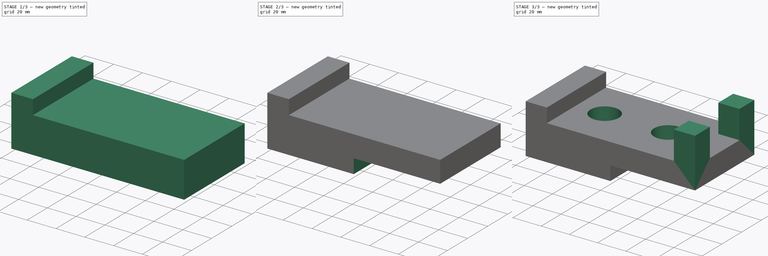
[diagram: build sequence overview — one tinted view per stage of 3, left to right]
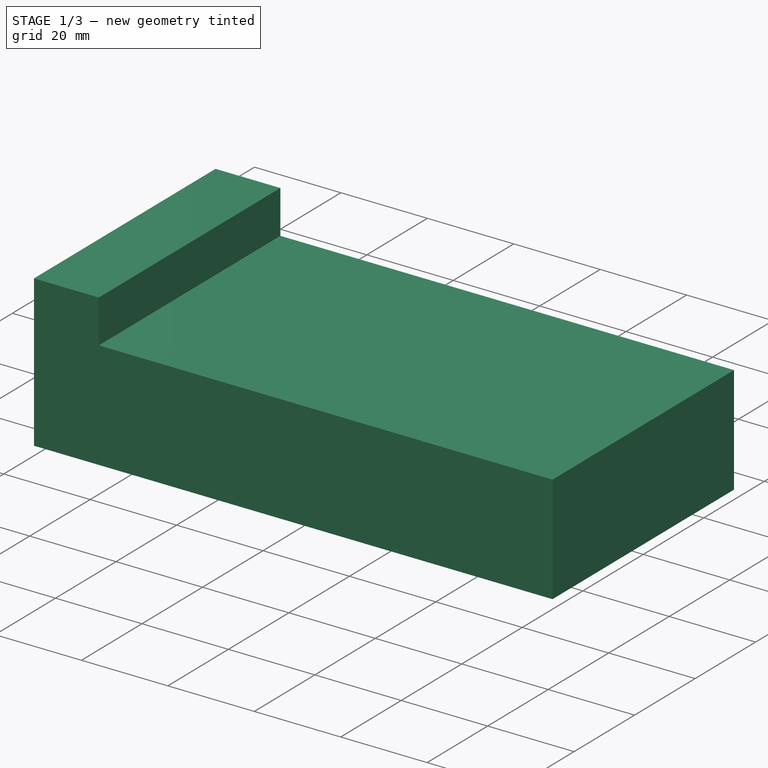
[diagram: stage 1 of 3 — iso view after this stage's code; geometry added in this stage tinted green]
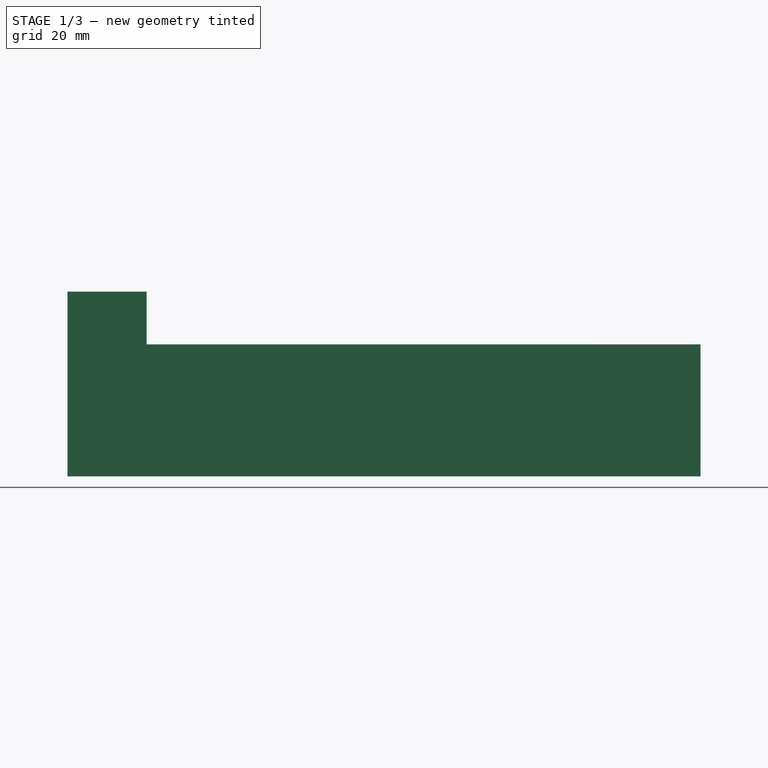
[diagram: stage 1 of 3 — front view after this stage's code; geometry added in this stage tinted green]
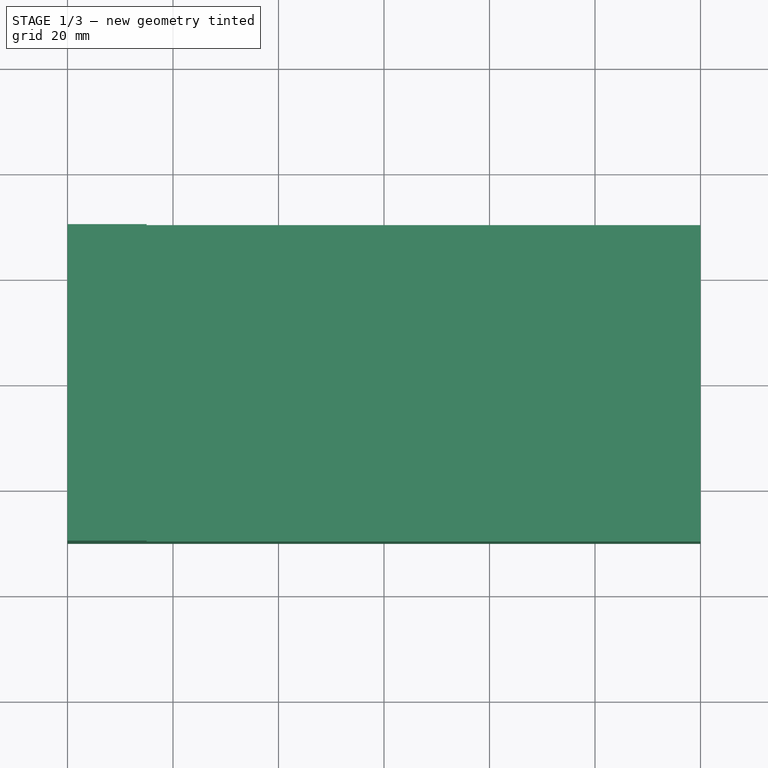
[diagram: stage 1 of 3 — top view after this stage's code; geometry added in this stage tinted green]
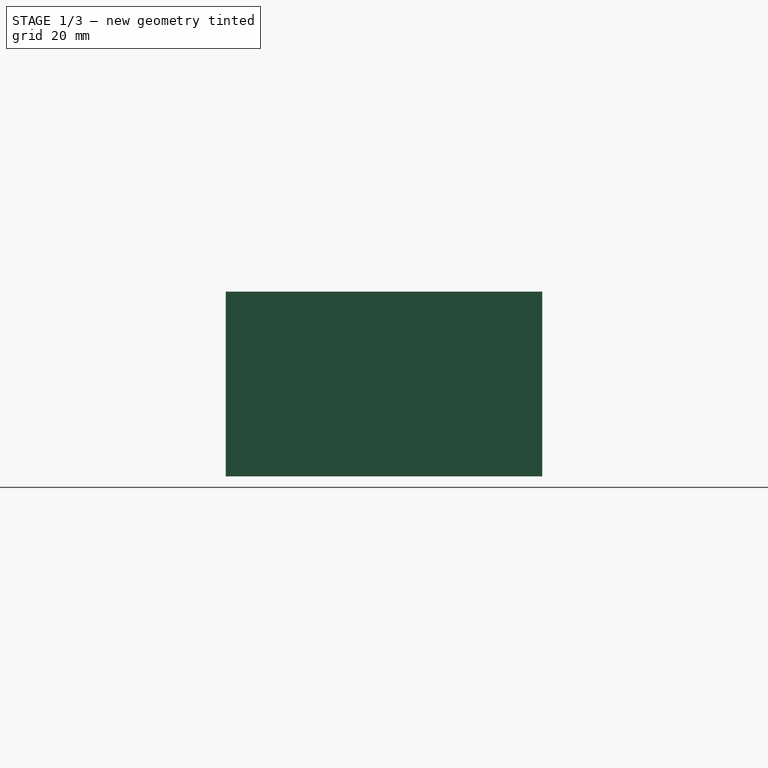
[diagram: stage 1 of 3 — right view after this stage's code; geometry added in this stage tinted green]
FCSTD DOCUMENT  (FreeCAD 0.16R)
Label: Fig 3.17 Final
License: All rights reserved
LicenseURL: http://en.wikipedia.org/wiki/All_rights_reserved
objects: Sketcher::SketchObject×5, PartDesign::Pocket×3, PartDesign::Pad×2
note: 15 computed .brp shape members not serialized (recipe doc carries the construction recipe); baked Part::Feature solids carry a one-line shape summary decoded from their .brp

FEATURE [Sketcher::SketchObject] Sketch
  sketch-geometry (4):
    g0: LineSegment StartX=-60 StartY=30 StartZ=0 EndX=60 EndY=30 EndZ=0
    g1: LineSegment StartX=60 StartY=30 StartZ=0 EndX=60 EndY=-30 EndZ=0
    g2: LineSegment StartX=60 StartY=-30 StartZ=0 EndX=-60 EndY=-30 EndZ=0
    g3: LineSegment StartX=-60 StartY=-30 StartZ=0 EndX=-60 EndY=30 EndZ=0
  constraints (12):
    c: Coincident(g0,g1)
    c: Coincident(g1,g2)
    c: Coincident(g2,g3)
    c: Coincident(g3,g0)
    c: Horizontal(g0)
    c: Horizontal(g2)
    c: Vertical(g1)
    c: Vertical(g3)
    c: Symmetric(g0,g0,g-2)
    c: Symmetric(g2,g0,g-1)
    c: DistanceX(g2,g2) = 120
    c: DistanceY(g3,g3) = 60
FEATURE [PartDesign::Pad] Pad
  Length = 35
  Length2 = 100
  Sketch = -> Sketch
  Type = 0
FEATURE [Sketcher::SketchObject] Sketch001
  ExternalGeometry = -> [Pad]
  Placement = pos=(0,0,35) rot=(0,0,1;0rad)
  Support = -> Pad [Face6]
  sketch-geometry (4):
    g0: LineSegment StartX=-45 StartY=40.48 StartZ=0 EndX=77.74 EndY=40.48 EndZ=0
    g1: LineSegment StartX=77.74 StartY=40.48 StartZ=0 EndX=77.74 EndY=-49.3734 EndZ=0
    g2: LineSegment StartX=77.74 StartY=-49.3734 StartZ=0 EndX=-45 EndY=-49.3734 EndZ=0
    g3: LineSegment StartX=-45 StartY=-49.3734 StartZ=0 EndX=-45 EndY=40.48 EndZ=0
  constraints (9):
    c: Coincident(g0,g1)
    c: Coincident(g1,g2)
    c: Coincident(g2,g3)
    c: Coincident(g3,g0)
    c: Horizontal(g0)
    c: Horizontal(g2)
    c: Vertical(g1)
    c: Vertical(g3)
    c: DistanceX(g-3,g2) = 15
FEATURE [PartDesign::Pocket] Pocket
  Length = 10
  Sketch = -> Sketch001
  Type = 0
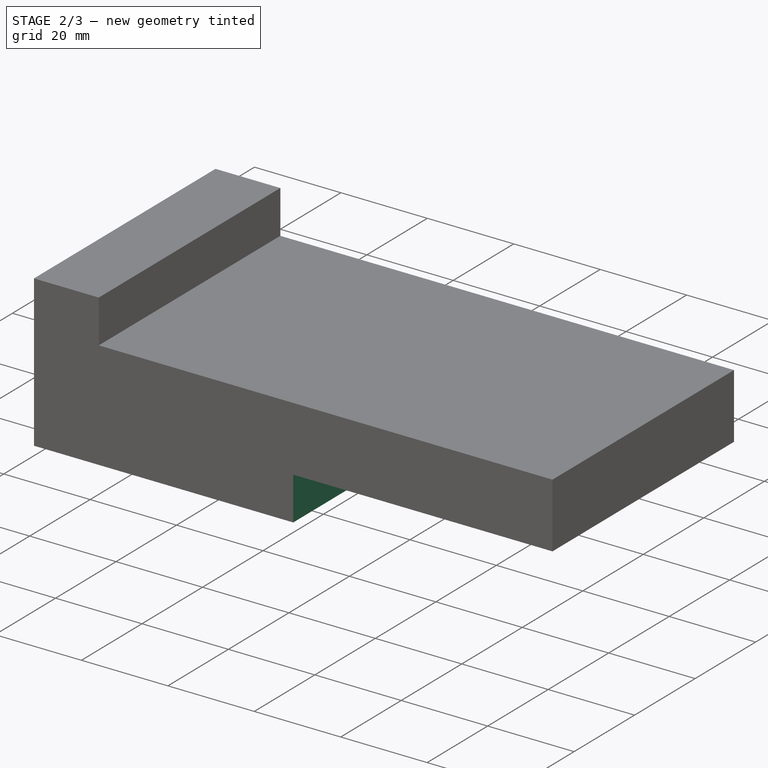
[diagram: stage 2 of 3 — iso view after this stage's code; geometry added in this stage tinted green]
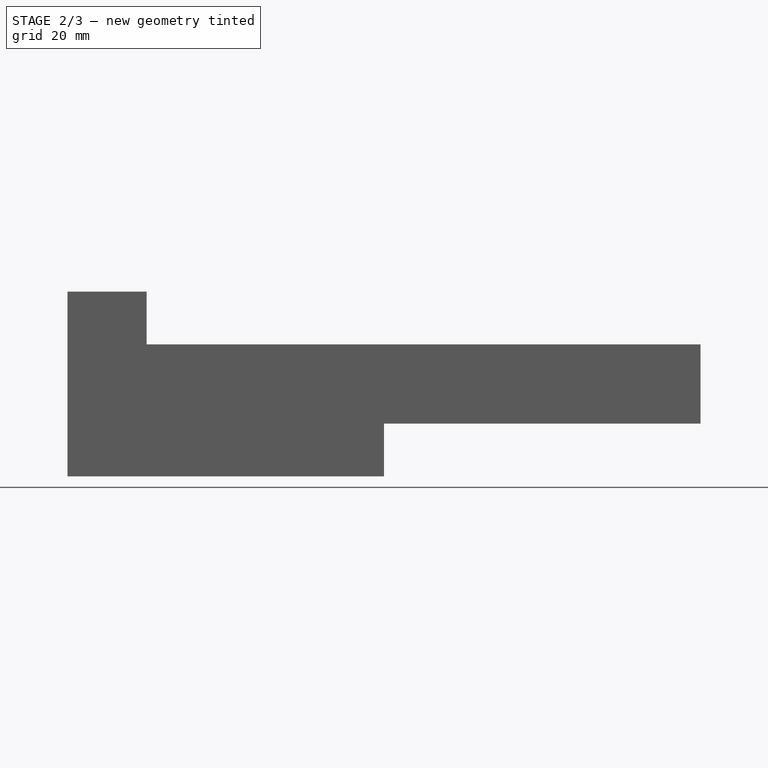
[diagram: stage 2 of 3 — front view after this stage's code; geometry added in this stage tinted green]
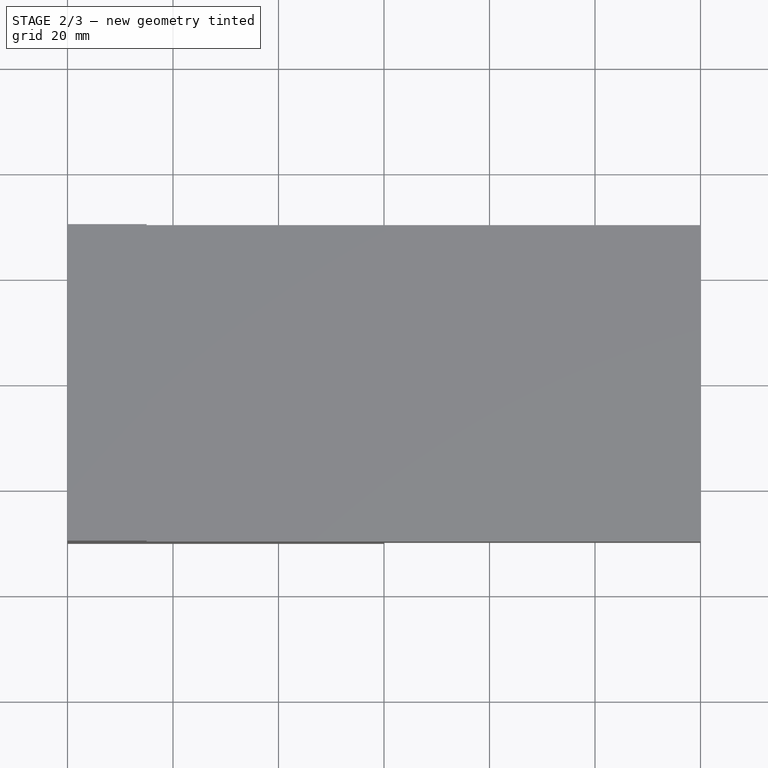
[diagram: stage 2 of 3 — top view after this stage's code; geometry added in this stage tinted green]
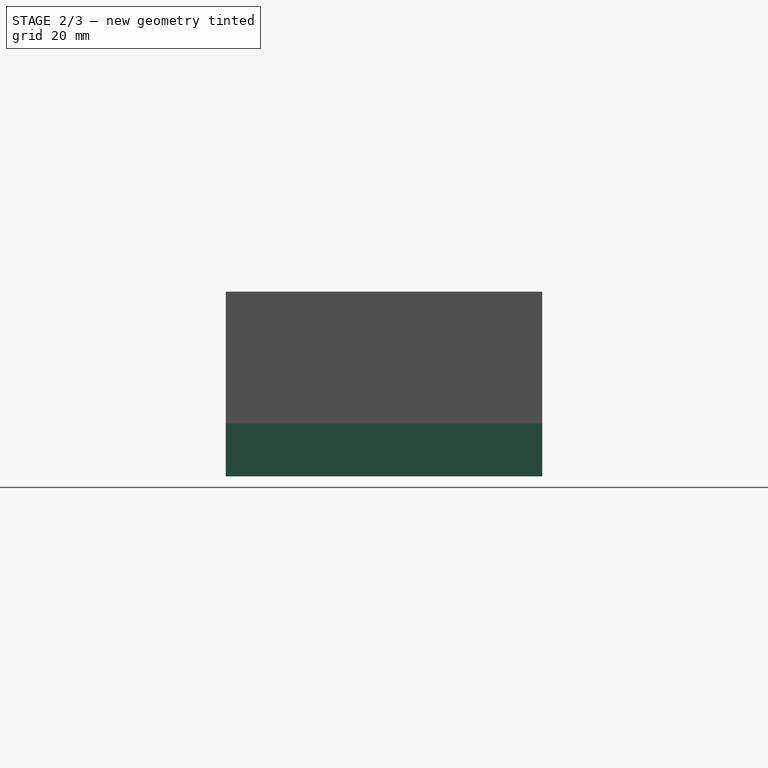
[diagram: stage 2 of 3 — right view after this stage's code; geometry added in this stage tinted green]
FEATURE [Sketcher::SketchObject] Sketch002
  ExternalGeometry = -> [Pocket]
  Placement = pos=(0,0,0) rot=(1,0,0;3.14159rad)
  Support = -> Pocket [Face2]
  sketch-geometry (4):
    g0: LineSegment StartX=0 StartY=53.36 StartZ=0 EndX=72.22 EndY=53.36 EndZ=0
    g1: LineSegment StartX=72.22 StartY=53.36 StartZ=0 EndX=72.22 EndY=-47.84 EndZ=0
    g2: LineSegment StartX=72.22 StartY=-47.84 StartZ=0 EndX=0 EndY=-47.84 EndZ=0
    g3: LineSegment StartX=0 StartY=-47.84 StartZ=0 EndX=0 EndY=53.36 EndZ=0
  constraints (9):
    c: Coincident(g0,g1)
    c: Coincident(g1,g2)
    c: Coincident(g2,g3)
    c: Coincident(g3,g0)
    c: Horizontal(g0)
    c: Horizontal(g2)
    c: Vertical(g1)
    c: Vertical(g3)
    c: PointOnObject(g2,g-2)
FEATURE [PartDesign::Pocket] Pocket001
  Length = 10
  Sketch = -> Sketch002
  Type = 0
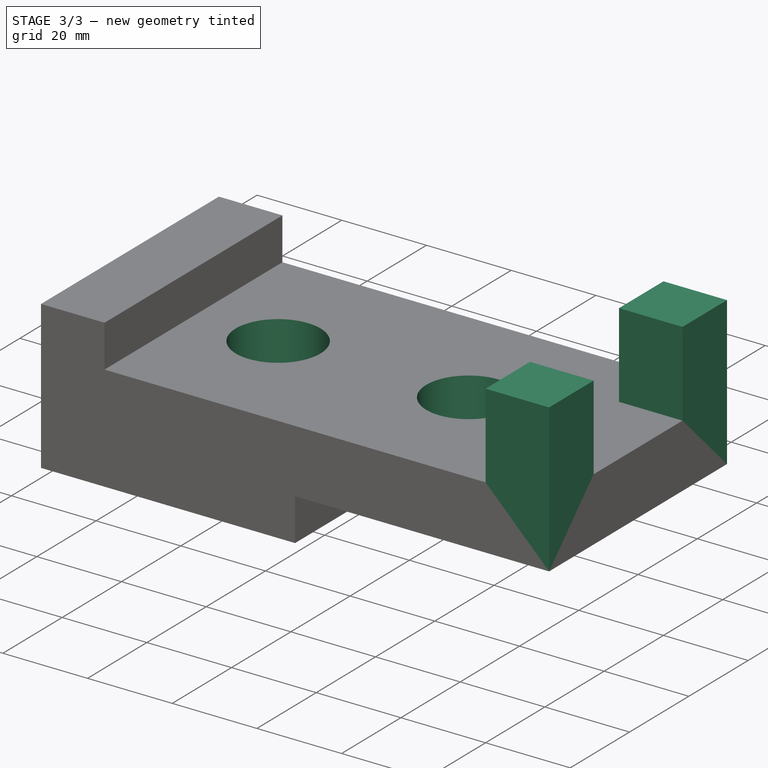
[diagram: stage 3 of 3 — iso view after this stage's code; geometry added in this stage tinted green]
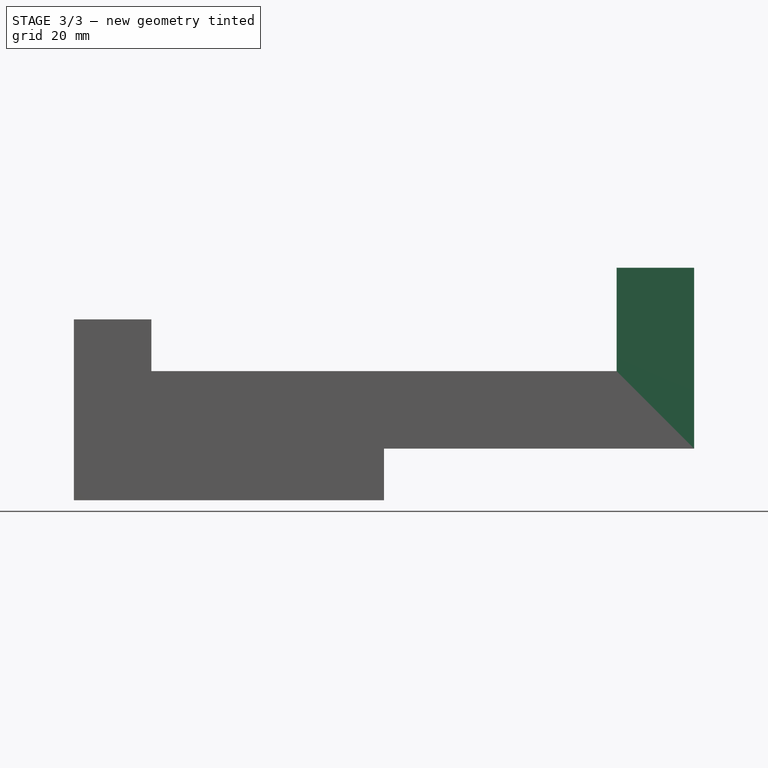
[diagram: stage 3 of 3 — front view after this stage's code; geometry added in this stage tinted green]
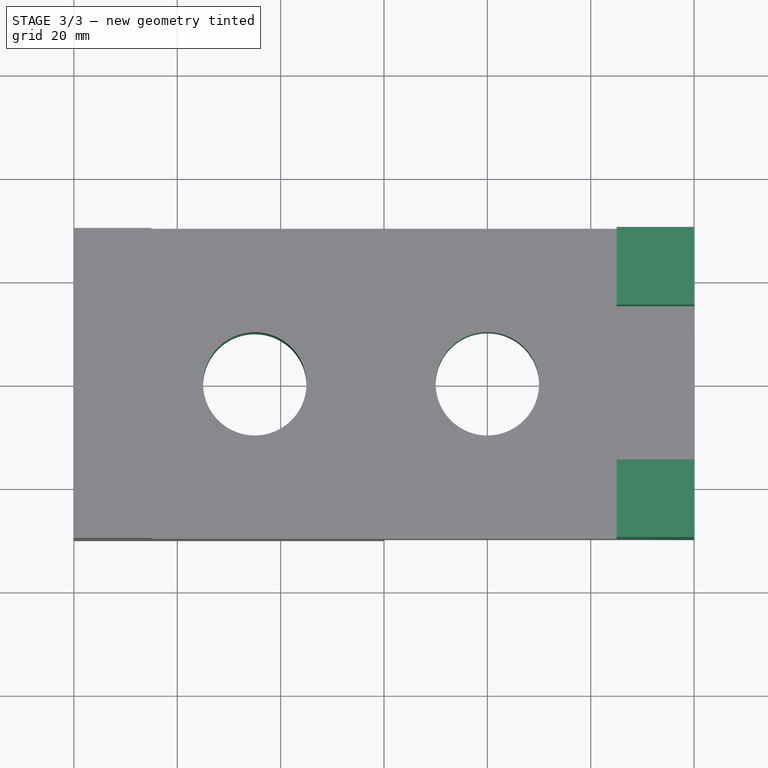
[diagram: stage 3 of 3 — top view after this stage's code; geometry added in this stage tinted green]
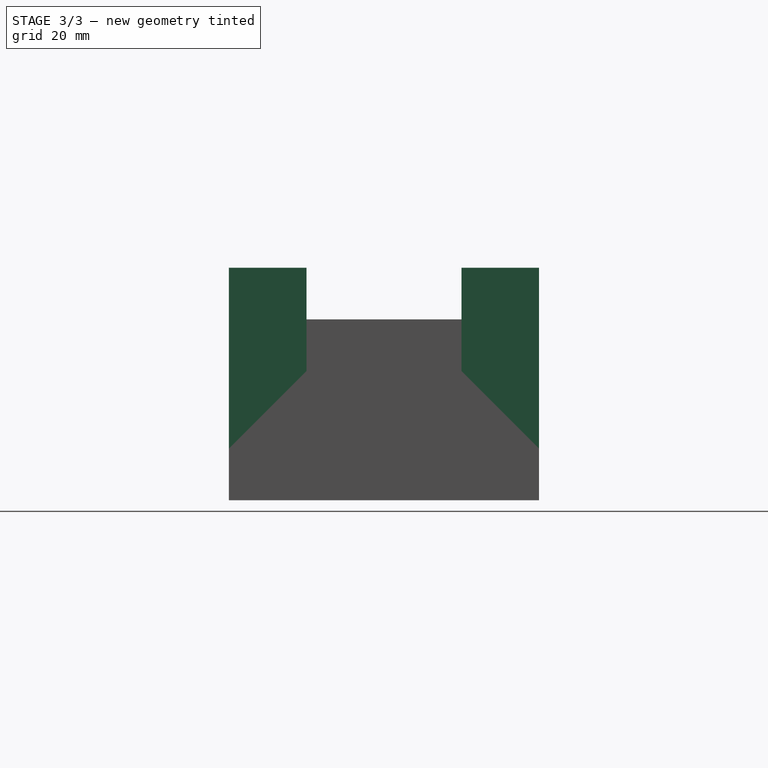
[diagram: stage 3 of 3 — right view after this stage's code; geometry added in this stage tinted green]
FEATURE [Sketcher::SketchObject] Sketch003
  ExternalGeometry = -> [Pocket001]
  Placement = pos=(0,0,25) rot=(0,0,1;0rad)
  Support = -> Pocket001 [Face6]
  sketch-geometry (8):
    g0: LineSegment StartX=45 StartY=15 StartZ=0 EndX=60 EndY=15 EndZ=0
    g1: LineSegment StartX=60 StartY=15 StartZ=0 EndX=60 EndY=30 EndZ=0
    g2: LineSegment StartX=60 StartY=30 StartZ=0 EndX=45 EndY=30 EndZ=0
    g3: LineSegment StartX=45 StartY=30 StartZ=0 EndX=45 EndY=15 EndZ=0
    g4: LineSegment StartX=45 StartY=-15 StartZ=0 EndX=60 EndY=-15 EndZ=0
    g5: LineSegment StartX=60 StartY=-15 StartZ=0 EndX=60 EndY=-30 EndZ=0
    g6: LineSegment StartX=60 StartY=-30 StartZ=0 EndX=45 EndY=-30 EndZ=0
    g7: LineSegment StartX=45 StartY=-30 StartZ=0 EndX=45 EndY=-15 EndZ=0
  constraints (22):
    c: Coincident(g0,g1)
    c: Coincident(g1,g2)
    c: Coincident(g2,g3)
    c: Coincident(g3,g0)
    c: Horizontal(g0)
    c: Horizontal(g2)
    c: Vertical(g1)
    c: Vertical(g3)
    c: Coincident(g4,g5)
    c: Coincident(g5,g6)
    c: Coincident(g6,g7)
    c: Coincident(g7,g4)
    c: Horizontal(g4)
    c: Horizontal(g6)
    c: Vertical(g5)
    c: Vertical(g7)
    c: Coincident(g1,g-3)
    c: Coincident(g5,g-3)
    c: Equal(g6,g7)
    c: Equal(g7,g0)
    c: Equal(g0,g3)
    c: DistanceX(g4,g4) = 15
FEATURE [PartDesign::Pad] Pad001
  Length = 20
  Length2 = 100
  Sketch = -> Sketch003
  Type = 0
FEATURE [Sketcher::SketchObject] Sketch004
  ExternalGeometry = -> [Pad001]
  Placement = pos=(0,0,25) rot=(0,0,1;0rad)
  Support = -> Pad001 [Face7]
  sketch-geometry (2):
    g0: Circle CenterX=-25 CenterY=0 CenterZ=0 NormalX=0 NormalY=0 NormalZ=1 Radius=10
    g1: Circle CenterX=20 CenterY=0 CenterZ=0 NormalX=0 NormalY=0 NormalZ=1 Radius=10
  constraints (6):
    c: PointOnObject(g0,g-1)
    c: PointOnObject(g1,g-1)
    c: DistanceX(g0,g1) = 45
    c: Radius(g1) = 10
    c: Equal(g1,g0)
    c: DistanceX(g-3,g0) = 20
FEATURE [PartDesign::Pocket] Pocket002
  Length = 5
  Sketch = -> Sketch004
  Type = 1
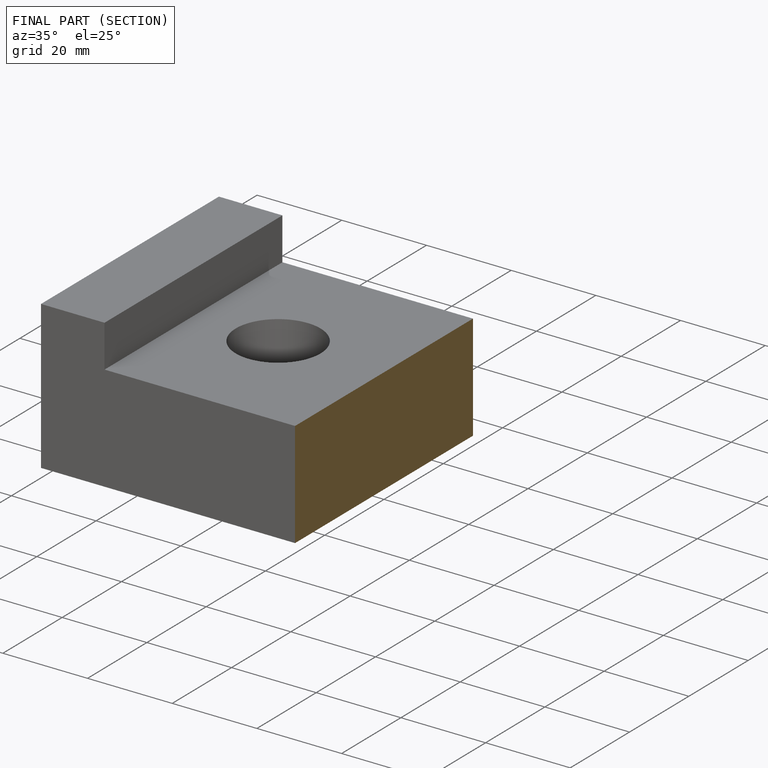
[diagram: finished part — half-section view (interior)]
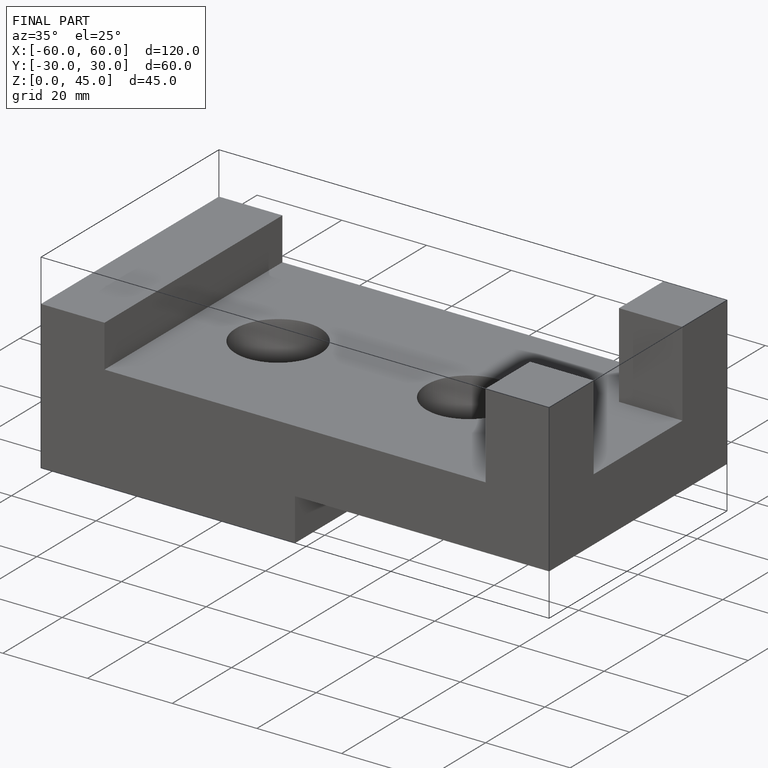
[diagram: finished part — iso view with bounding-box wireframe]
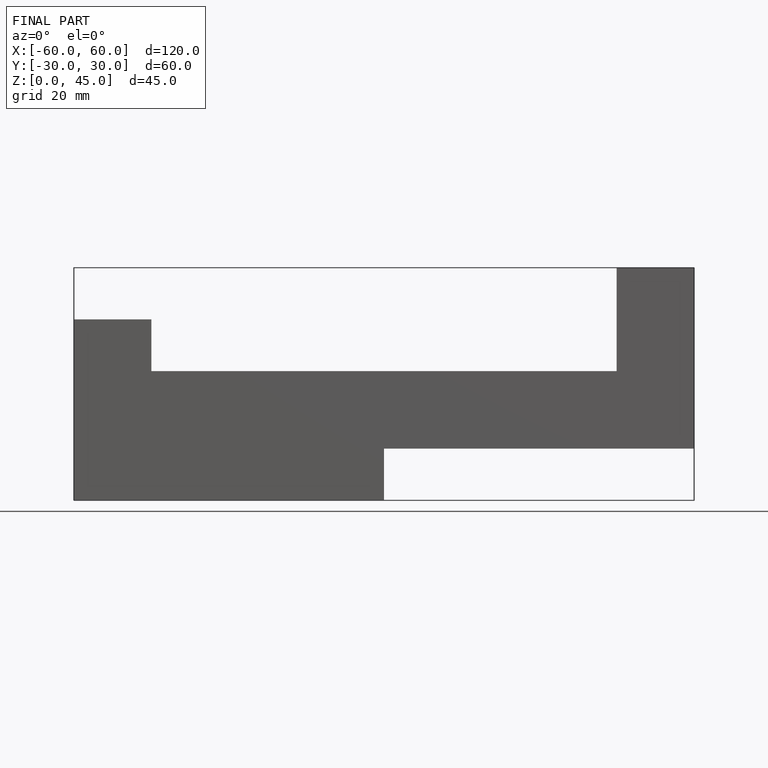
[diagram: finished part — front view with bounding-box wireframe]
